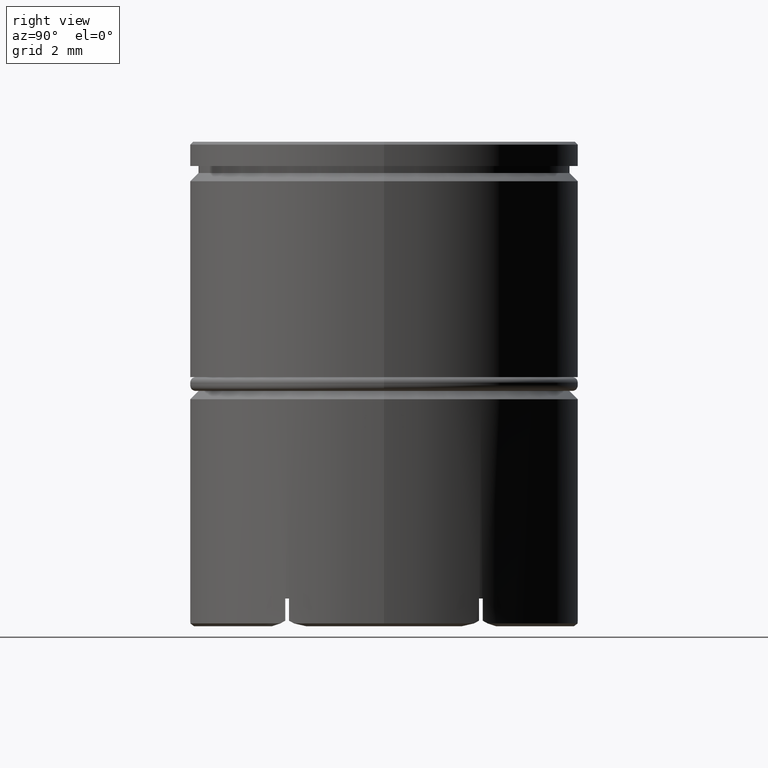
[diagram: clean part render]
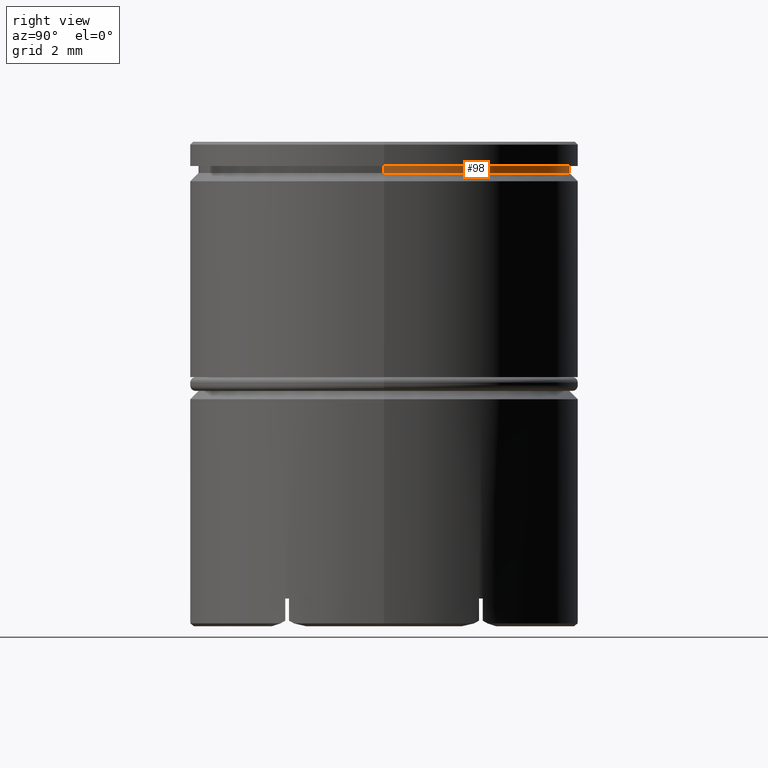
[diagram: same view with one face highlighted and labeled with its STEP entity id]
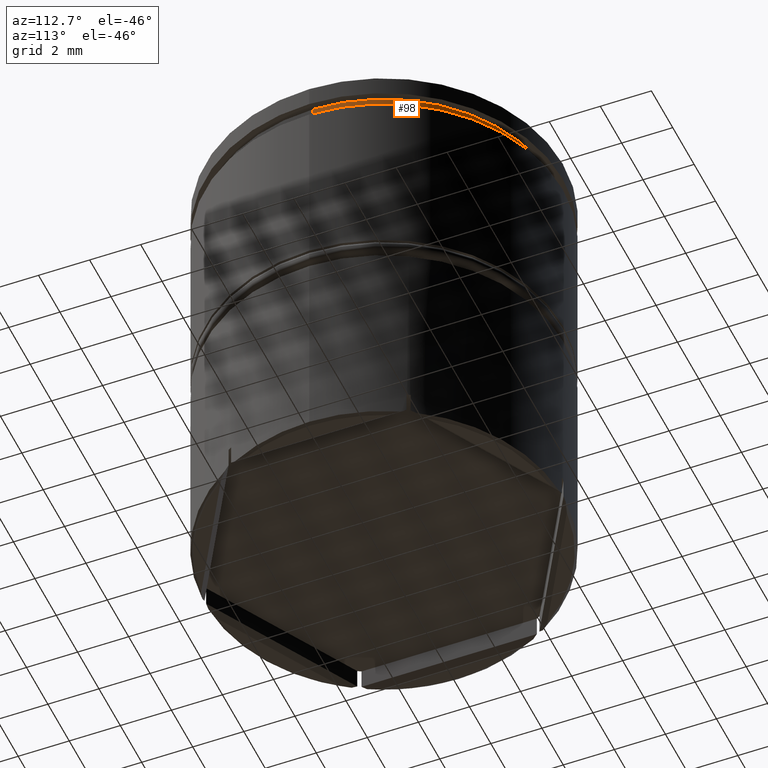
[diagram: same view with one face highlighted and labeled with its STEP entity id]
A machine part, right view. The second image highlights one B-rep face of the part: STEP entity #98.
A second angle (auxiliary view) of the same face is appended — the face is thin or edge-on in the first view.
In plain terms, the highlighted cylindrical surface (partial cylindrical patch) has radius 6.7 mm, axis along (-0, -0, 1).
Its self-contained STEP definition (entity closure, byte-faithful):
#62 = DIRECTION ( 'NONE',  ( -0.000000000000000000, -0.000000000000000000, 1.000000000000000000 ) ) ;
#90 = CIRCLE ( 'NONE', #884, 6.700000000000001066 ) ;
#98 = ADVANCED_FACE ( 'NONE', ( #1175 ), #937, .T. ) ;
#110 = CIRCLE ( 'NONE', #424, 6.700000000000001066 ) ;
#168 = VERTEX_POINT ( 'NONE', #1601 ) ;
#372 = VECTOR ( 'NONE', #62, 1000.000000000000000 ) ;
#393 = ORIENTED_EDGE ( 'NONE', *, *, #501, .F. ) ;
#411 = VERTEX_POINT ( 'NONE', #569 ) ;
#417 = EDGE_CURVE ( 'NONE', #994, #411, #519, .T. ) ;
#424 = AXIS2_PLACEMENT_3D ( 'NONE', #1277, #627, #1124 ) ;
#453 = DIRECTION ( 'NONE',  ( 1.000000000000000000, 0.000000000000000000, 0.000000000000000000 ) ) ;
#501 = EDGE_CURVE ( 'NONE', #1210, #411, #90, .T. ) ;
#519 = LINE ( 'NONE', #827, #983 ) ;
#539 = ORIENTED_EDGE ( 'NONE', *, *, #1217, .F. ) ;
#560 = DIRECTION ( 'NONE',  ( -0.000000000000000000, -0.000000000000000000, 1.000000000000000000 ) ) ;
#569 = CARTESIAN_POINT ( 'NONE',  ( -6.700000000000001066, 8.205133554287267548E-16, -0.8749999999999998890 ) ) ;
#621 = AXIS2_PLACEMENT_3D ( 'NONE', #1314, #560, #1309 ) ;
#627 = DIRECTION ( 'NONE',  ( -0.000000000000000000, -0.000000000000000000, 1.000000000000000000 ) ) ;
#804 = ORIENTED_EDGE ( 'NONE', *, *, #1049, .T. ) ;
#821 = CARTESIAN_POINT ( 'NONE',  ( 0.000000000000000000, 0.000000000000000000, -0.8749999999999998890 ) ) ;
#827 = CARTESIAN_POINT ( 'NONE',  ( -6.700000000000001066, 8.205133554287267548E-16, 0.000000000000000000 ) ) ;
#884 = AXIS2_PLACEMENT_3D ( 'NONE', #821, #960, #453 ) ;
#914 = CARTESIAN_POINT ( 'NONE',  ( 6.700000000000001066, 0.000000000000000000, -0.8749999999999998890 ) ) ;
#937 = CYLINDRICAL_SURFACE ( 'NONE', #621, 6.700000000000001066 ) ;
#952 = EDGE_LOOP ( 'NONE', ( #804, #1614, #393, #539 ) ) ;
#960 = DIRECTION ( 'NONE',  ( -0.000000000000000000, -0.000000000000000000, 1.000000000000000000 ) ) ;
#983 = VECTOR ( 'NONE', #1335, 1000.000000000000000 ) ;
#994 = VERTEX_POINT ( 'NONE', #1398 ) ;
#1049 = EDGE_CURVE ( 'NONE', #168, #994, #110, .T. ) ;
#1124 = DIRECTION ( 'NONE',  ( 1.000000000000000000, 0.000000000000000000, 0.000000000000000000 ) ) ;
#1175 = FACE_OUTER_BOUND ( 'NONE', #952, .T. ) ;
#1210 = VERTEX_POINT ( 'NONE', #914 ) ;
#1217 = EDGE_CURVE ( 'NONE', #168, #1210, #1415, .T. ) ;
#1277 = CARTESIAN_POINT ( 'NONE',  ( 0.000000000000000000, 0.000000000000000000, -1.125000000000000222 ) ) ;
#1309 = DIRECTION ( 'NONE',  ( 1.000000000000000000, 0.000000000000000000, 0.000000000000000000 ) ) ;
#1314 = CARTESIAN_POINT ( 'NONE',  ( 0.000000000000000000, 0.000000000000000000, 0.000000000000000000 ) ) ;
#1335 = DIRECTION ( 'NONE',  ( -0.000000000000000000, -0.000000000000000000, 1.000000000000000000 ) ) ;
#1398 = CARTESIAN_POINT ( 'NONE',  ( -6.700000000000001066, 8.205133554287267548E-16, -1.125000000000000222 ) ) ;
#1415 = LINE ( 'NONE', #1552, #372 ) ;
#1552 = CARTESIAN_POINT ( 'NONE',  ( 6.700000000000001066, 0.000000000000000000, 0.000000000000000000 ) ) ;
#1601 = CARTESIAN_POINT ( 'NONE',  ( 6.700000000000001066, 0.000000000000000000, -1.125000000000000222 ) ) ;
#1614 = ORIENTED_EDGE ( 'NONE', *, *, #417, .T. ) ;